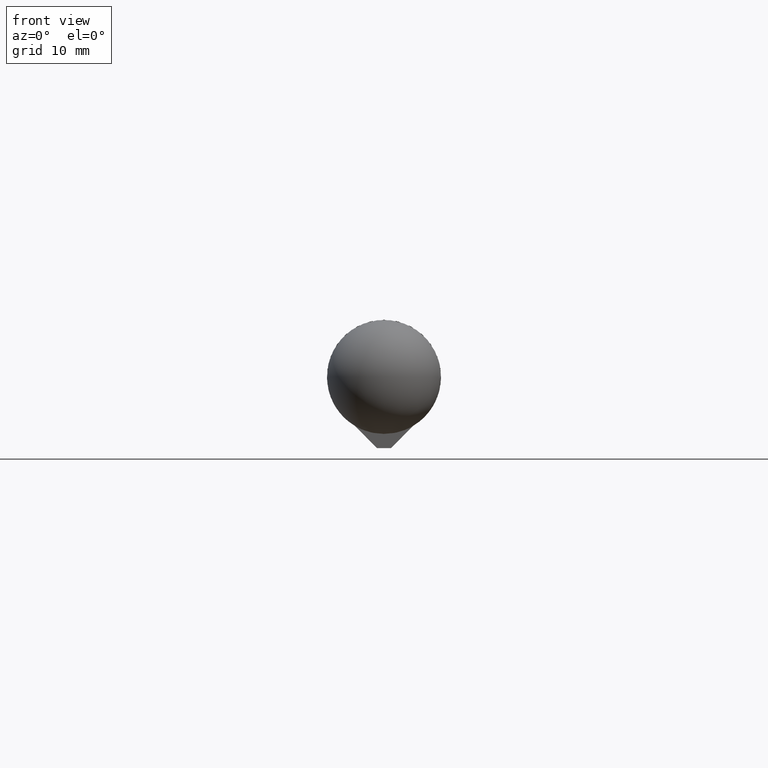
[diagram: clean part render]
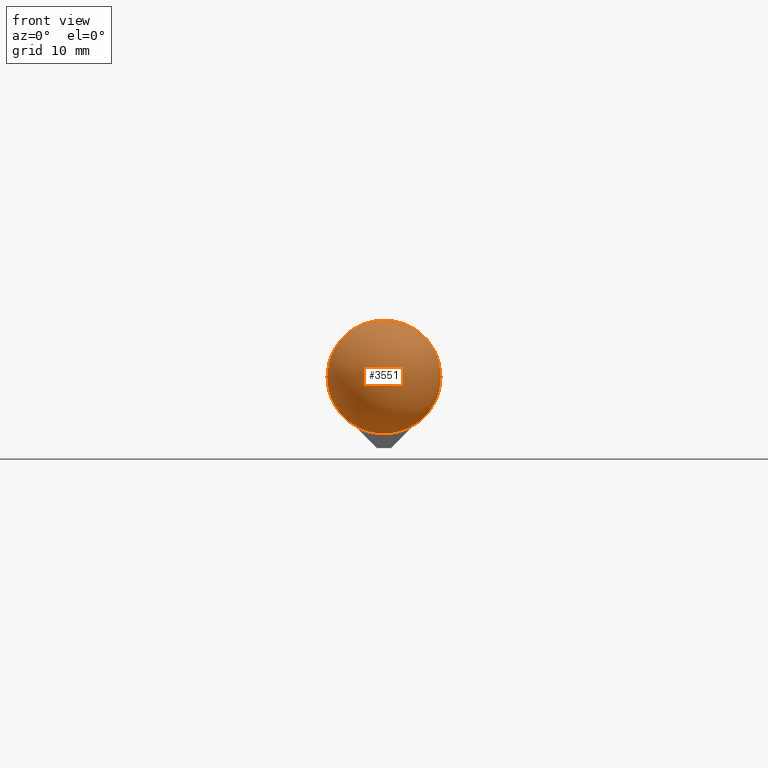
[diagram: same view with one face highlighted and labeled with its STEP entity id]
A machine part, front view. The second image highlights one B-rep face of the part: STEP entity #3551.
In plain terms, the highlighted spherical surface has radius 8 mm.
Its self-contained STEP definition (entity closure, byte-faithful):
#2657 = CIRCLE ( 'NONE', #9918, 8.000000000000000000 ) ;
#2857 = AXIS2_PLACEMENT_3D ( 'NONE', #3068, #9796, #7998 ) ;
#3068 = CARTESIAN_POINT ( 'NONE',  ( 0.000000000000000000, 8.000000000000000000, 0.000000000000000000 ) ) ;
#3551 = ADVANCED_FACE ( 'NONE', ( #9233 ), #11872, .T. ) ;
#3559 = DIRECTION ( 'NONE',  ( 0.000000000000000000, 0.000000000000000000, -1.000000000000000000 ) ) ;
#3603 = DIRECTION ( 'NONE',  ( 0.000000000000000000, 1.000000000000000000, 0.000000000000000000 ) ) ;
#4466 = CARTESIAN_POINT ( 'NONE',  ( 0.000000000000000000, 8.000000000000000000, 0.000000000000000000 ) ) ;
#6890 = ORIENTED_EDGE ( 'NONE', *, *, #11328, .F. ) ;
#7998 = DIRECTION ( 'NONE',  ( 0.000000000000000000, 0.000000000000000000, 1.000000000000000000 ) ) ;
#9233 = FACE_OUTER_BOUND ( 'NONE', #9581, .T. ) ;
#9342 = CARTESIAN_POINT ( 'NONE',  ( 0.000000000000000000, 8.000000000000000000, -8.000000000000000000 ) ) ;
#9581 = EDGE_LOOP ( 'NONE', ( #6890 ) ) ;
#9796 = DIRECTION ( 'NONE',  ( 1.000000000000000000, 0.000000000000000000, 0.000000000000000000 ) ) ;
#9918 = AXIS2_PLACEMENT_3D ( 'NONE', #4466, #3603, #3559 ) ;
#11328 = EDGE_CURVE ( 'NONE', #11660, #11660, #2657, .T. ) ;
#11660 = VERTEX_POINT ( 'NONE', #9342 ) ;
#11872 = SPHERICAL_SURFACE ( 'NONE', #2857, 8.000000000000000000 ) ;